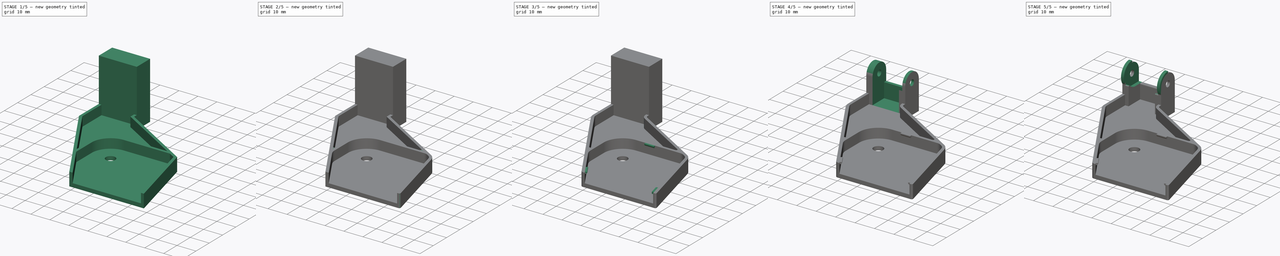
[diagram: build sequence overview — one tinted view per stage of 5, left to right]
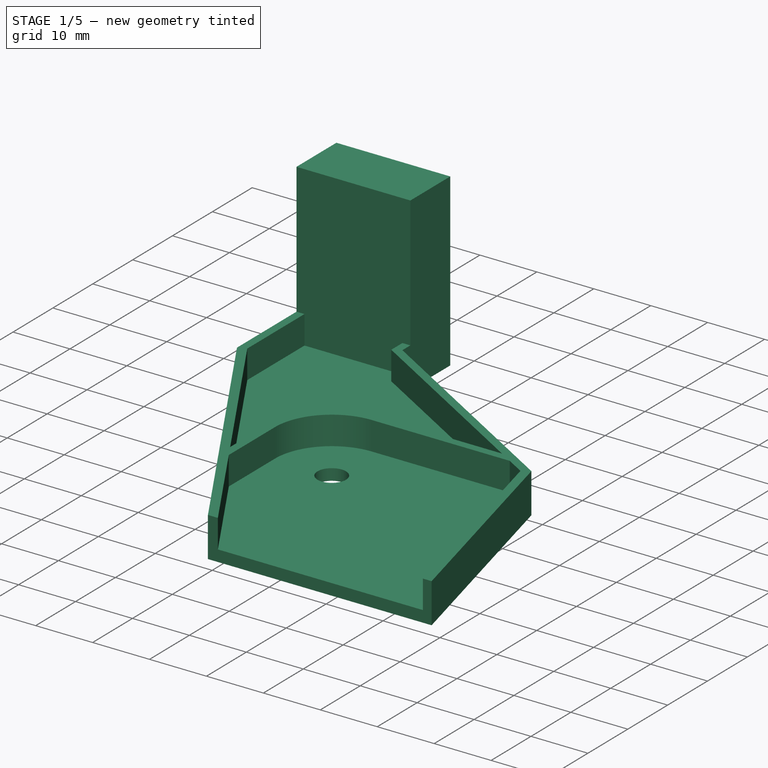
[diagram: stage 1 of 5 — iso view after this stage's code; geometry added in this stage tinted green]
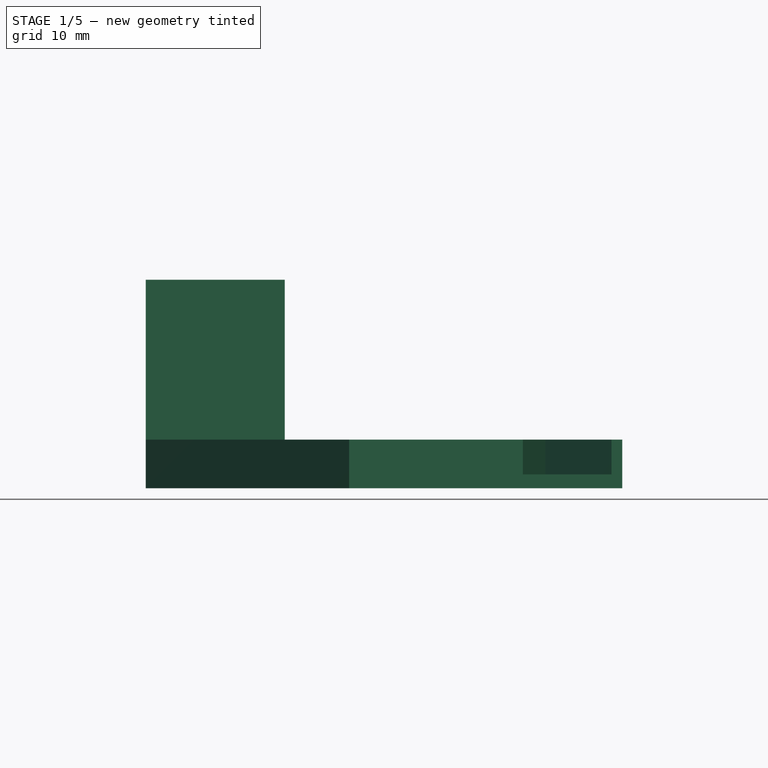
[diagram: stage 1 of 5 — front view after this stage's code; geometry added in this stage tinted green]
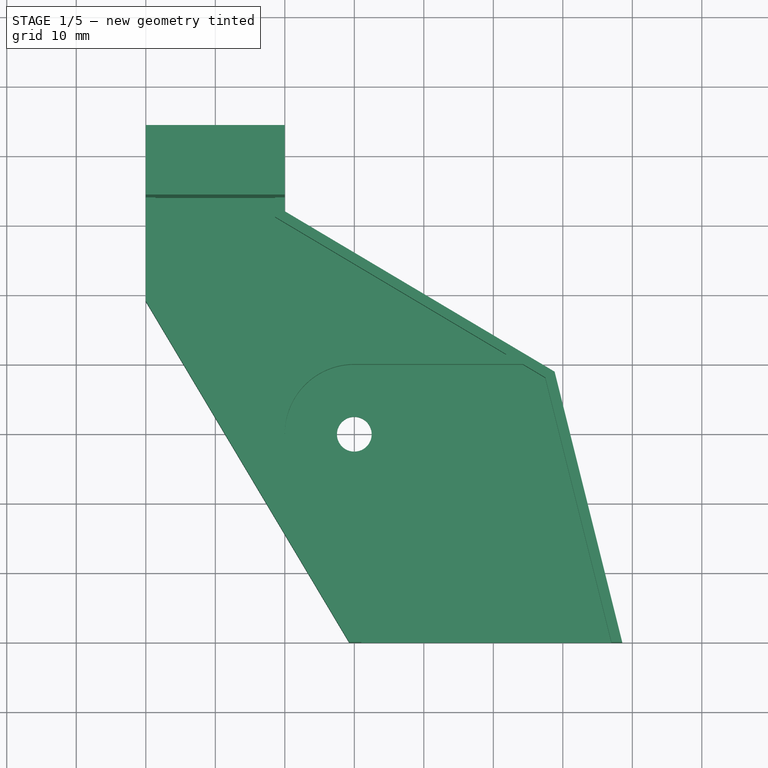
[diagram: stage 1 of 5 — top view after this stage's code; geometry added in this stage tinted green]
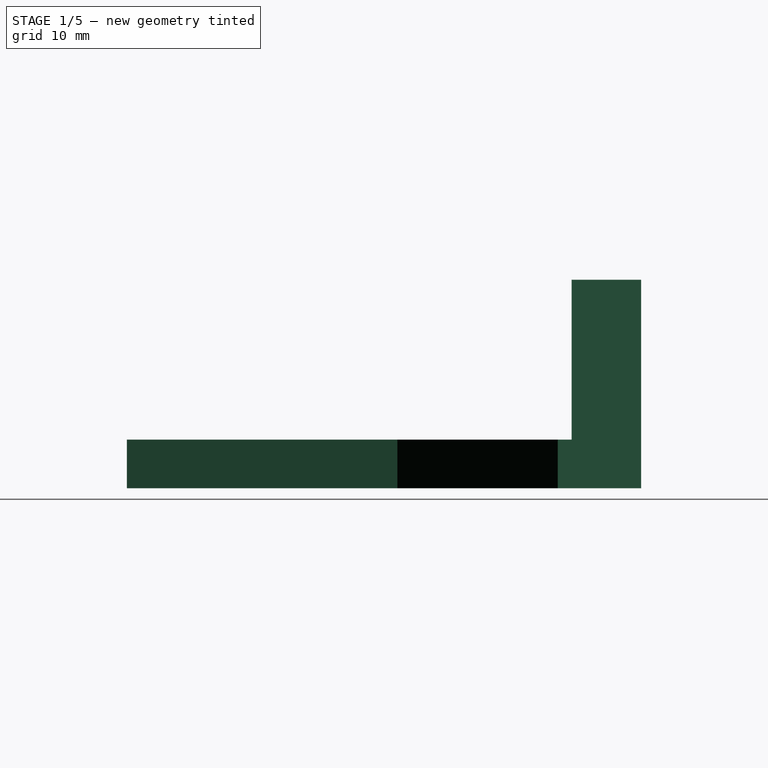
[diagram: stage 1 of 5 — right view after this stage's code; geometry added in this stage tinted green]
FCSTD DOCUMENT  (FreeCAD 0.17R13541 (Git))
Label: CableCareerTableHeader
License: All rights reserved
LicenseURL: http://en.wikipedia.org/wiki/All_rights_reserved
objects: Sketcher::SketchObject×17, PartDesign::Fillet×17, PartDesign::Pocket×11, PartDesign::Pad×5, PartDesign::Chamfer×3, PartDesign::Body×1
note: 70 computed .brp shape members not serialized (recipe doc carries the construction recipe); baked Part::Feature solids carry a one-line shape summary decoded from their .brp

FEATURE [Sketcher::SketchObject] Sketch
  MapMode = 5
  Support = -> [XY_Plane]
  sketch-geometry (7):
    g0: LineSegment StartX=-20 StartY=34 StartZ=0 EndX=0 EndY=34 EndZ=0
    g1: LineSegment StartX=0 StartY=34 StartZ=0 EndX=0 EndY=22 EndZ=0
    g2: LineSegment StartX=0 StartY=22 StartZ=0 EndX=37 EndY=0 EndZ=0
    g3: LineSegment StartX=37 StartY=0 StartZ=0 EndX=47 EndY=-40 EndZ=0
    g4: LineSegment StartX=47 StartY=-40 StartZ=0 EndX=11 EndY=-40 EndZ=0
    g5: LineSegment StartX=11 StartY=-40 StartZ=0 EndX=-20 EndY=12 EndZ=0
    g6: LineSegment StartX=-20 StartY=12 StartZ=0 EndX=-20 EndY=34 EndZ=0
  constraints (21):
    c: Coincident(g0,g1)
    c: Coincident(g1,g2)
    c: Coincident(g2,g3)
    c: Coincident(g3,g4)
    c: Coincident(g4,g5)
    c: Coincident(g5,g6)
    c: Coincident(g6,g0)
    c: Parallel(g0,g-1)
    c: Parallel(g-1,g4)
    c: Parallel(g6,g1)
    c: Parallel(g1,g-2)
    c: DistanceY(g6,g6) = 22
    c: DistanceX(g0,g0) = 20
    c: DistanceY(g1,g1) = 12
    c: DistanceX(g5,g4) = 31
    c: DistanceY(g4,g5) = 52
    c: DistanceX(g4,g3) = 36
    c: DistanceY(g2,g1) = 22
    c: DistanceX(g1,g2) = 37
    c: PointOnObject(g1,g-2)
    c: PointOnObject(g2,g-1)
FEATURE [Sketcher::SketchObject] Sketch001
  ExternalGeometry = -> [Sketch]
  MapMode = 5
  Support = -> [XY_Plane]
  sketch-geometry (7):
    g0: LineSegment StartX=-20 StartY=34 StartZ=0 EndX=0 EndY=34 EndZ=0
    g1: LineSegment StartX=0 StartY=34 StartZ=0 EndX=0 EndY=22 EndZ=0
    g2: LineSegment StartX=0 StartY=22 StartZ=0 EndX=38.8161 EndY=-1.07986 EndZ=0
    g3: LineSegment StartX=38.8161 StartY=-1.07986 StartZ=0 EndX=48.5462 EndY=-40 EndZ=0
    g4: LineSegment StartX=48.5462 StartY=-40 StartZ=0 EndX=9.25368 EndY=-40 EndZ=0
    g5: LineSegment StartX=9.25368 StartY=-40 StartZ=0 EndX=-20 EndY=9.07068 EndZ=0
    g6: LineSegment StartX=-20 StartY=9.07068 StartZ=0 EndX=-20 EndY=34 EndZ=0
  constraints (20):
    c: Coincident(g0,g1)
    c: Coincident(g1,g2)
    c: Coincident(g2,g3)
    c: Coincident(g3,g4)
    c: Coincident(g4,g5)
    c: Coincident(g5,g6)
    c: Coincident(g6,g0)
    c: Parallel(g-3,g0)
    c: Parallel(g-7,g1)
    c: Parallel(g-6,g2)
    c: Parallel(g-8,g3)
    c: Parallel(g4,g-9)
    c: Parallel(g-5,g5)
    c: Parallel(g-4,g6)
    c: Coincident(g-4,g0)
    c: Coincident(g-7,g0)
    c: Coincident(g-7,g1)
    c: PointOnObject(g-9,g4)
    c: Distance(g5,g-5) = 1.5
    c: Distance(g2,g-8) = 1.5
FEATURE [PartDesign::Pad] Pad
  Length = 30
  Length2 = 100
  Profile = -> Sketch001
  Type = 0
FEATURE [Sketcher::SketchObject] Sketch002
  ExternalGeometry = -> [Pad]
  MapMode = 5
  Placement = pos=(0,0,30) rot=(0,0,1;0rad)
  Support = -> [Pad]
  sketch-geometry (4):
    g0: LineSegment StartX=48.5462 StartY=-40 StartZ=0 EndX=-20 EndY=-40 EndZ=0
    g1: LineSegment StartX=-20 StartY=-40 StartZ=0 EndX=-20 EndY=24 EndZ=0
    g2: LineSegment StartX=-20 StartY=24 StartZ=0 EndX=48.5462 EndY=24 EndZ=0
    g3: LineSegment StartX=48.5462 StartY=24 StartZ=0 EndX=48.5462 EndY=-40 EndZ=0
  constraints (11):
    c: Coincident(g0,g1)
    c: Coincident(g1,g2)
    c: Coincident(g2,g3)
    c: Coincident(g3,g0)
    c: Horizontal(g0)
    c: Horizontal(g2)
    c: Vertical(g1)
    c: Vertical(g3)
    c: Coincident(g0,g-5)
    c: PointOnObject(g-3,g1)
    c: DistanceY(g-4,g1) = 2
FEATURE [PartDesign::Pocket] Pocket
  BaseFeature = -> Pad
  Length = 23
  Length2 = 100
  Profile = -> Sketch002
  Type = 0
FEATURE [Sketcher::SketchObject] Sketch003
  AttachmentOffset = pos=(0,0,7) rot=(0,0,1;0rad)
  ExternalGeometry = -> [Sketch]
  MapMode = 5
  Placement = pos=(0,0,7) rot=(0,0,1;0rad)
  Support = -> [XY_Plane]
  sketch-geometry (7):
    g0: LineSegment StartX=-18.6 StartY=24 StartZ=0 EndX=-1.4 EndY=24 EndZ=0
    g1: LineSegment StartX=-1.4 StartY=24 StartZ=0 EndX=-1.4 EndY=21.2036 EndZ=0
    g2: LineSegment StartX=-1.4 StartY=21.2036 StartZ=0 EndX=37.4783 EndY=-1.91318 EndZ=0
    g3: LineSegment StartX=37.4783 StartY=-1.91318 StartZ=0 EndX=47 EndY=-40 EndZ=0
    g4: LineSegment StartX=47 StartY=-40 StartZ=0 EndX=11 EndY=-40 EndZ=0
    g5: LineSegment StartX=11 StartY=-40 StartZ=0 EndX=-18.6 EndY=9.65161 EndZ=0
    g6: LineSegment StartX=-18.6 StartY=9.65161 StartZ=0 EndX=-18.6 EndY=24 EndZ=0
  constraints (20):
    c: Coincident(g0,g1)
    c: Coincident(g1,g2)
    c: Coincident(g2,g3)
    c: Coincident(g3,g4)
    c: Coincident(g4,g5)
    c: Coincident(g5,g6)
    c: Coincident(g6,g0)
    c: Parallel(g2,g-6)
    c: Parallel(g1,g-5)
    c: Parallel(g0,g-3)
    c: Parallel(g6,g-4)
    c: Parallel(g5,g-7)
    c: Parallel(g4,g-8)
    c: Parallel(g3,g-9)
    c: Coincident(g-9,g3)
    c: Coincident(g4,g-8)
    c: Distance(g-9,g2) = 1.4
    c: Distance(g-7,g6) = 1.4
    c: Distance(g-6,g1) = 1.4
    c: DistanceY(g-6,g0) = 2
FEATURE [PartDesign::Pocket] Pocket001
  BaseFeature = -> Pocket
  Length = 5
  Length2 = 100
  Profile = -> Sketch003
  Type = 0
FEATURE [Sketcher::SketchObject] Sketch004
  AttachmentOffset = pos=(0,0,2) rot=(0,0,1;0rad)
  ExternalGeometry = -> [Sketch]
  MapMode = 5
  Placement = pos=(0,0,2) rot=(0,0,1;0rad)
  Support = -> [XY_Plane]
  sketch-geometry (6):
    g0: LineSegment StartX=-1.4 StartY=1.4 StartZ=0 EndX=31.9061 EndY=1.4 EndZ=0
    g1: LineSegment StartX=31.9061 StartY=1.4 StartZ=0 EndX=34.2607 EndY=0 EndZ=0
    g2: LineSegment StartX=34.2607 StartY=0 StartZ=0 EndX=0 EndY=0 EndZ=0
    g3: LineSegment StartX=-1.4 StartY=1.4 StartZ=0 EndX=-1.4 EndY=-19.2 EndZ=0
    g4: LineSegment StartX=-1.4 StartY=-19.2 StartZ=0 EndX=0 EndY=-21.5484 EndZ=0
    g5: LineSegment StartX=0 StartY=-21.5484 StartZ=0 EndX=0 EndY=0 EndZ=0
  constraints (17):
    c: Coincident(g5,g4)
    c: Coincident(g4,g3)
    c: Coincident(g3,g0)
    c: Coincident(g5,g2)
    c: Coincident(g1,g2)
    c: Coincident(g1,g0)
    c: Horizontal(g0)
    c: Horizontal(g2)
    c: Vertical(g5)
    c: Vertical(g3)
    c: Coincident(g2,g-1)
    c: PointOnObject(g4,g-3)
    c: PointOnObject(g3,g-3)
    c: DistanceX(g0,g-1) = 1.4
    c: DistanceY(g-1,g0) = 1.4
    c: Distance(g1,g-5) = 1.4
    c: Distance(g0,g-5) = 1.4
FEATURE [PartDesign::Pad] Pad001
  BaseFeature = -> Pocket001
  Length = 5
  Length2 = 100
  Profile = -> Sketch004
  Type = 0
FEATURE [Sketcher::SketchObject] Sketch014
  MapMode = 5
  Placement = pos=(0,0,2) rot=(0,0,1;0rad)
  Support = -> [Pad001]
  sketch-geometry (1):
    g0: Circle CenterX=10 CenterY=-10 CenterZ=0 NormalX=0 NormalY=0 NormalZ=1 AngleXU=0 Radius=2.5
  constraints (3):
    c: Radius(g0) = 2.5
    c: DistanceX(g-1,g0) = 10
    c: DistanceY(g0,g-1) = 10
FEATURE [PartDesign::Pocket] Pocket011
  BaseFeature = -> Pad001
  Length = 2
  Length2 = 100
  Profile = -> Sketch014
  Type = 0
FEATURE [PartDesign::Fillet] Fillet
  Base = -> Pocket011 [Edge71]
  BaseFeature = -> Pocket011
  Radius = 10
FEATURE [PartDesign::Fillet] Fillet001
  Base = -> Fillet [Edge24]
  BaseFeature = -> Fillet
  Radius = 12
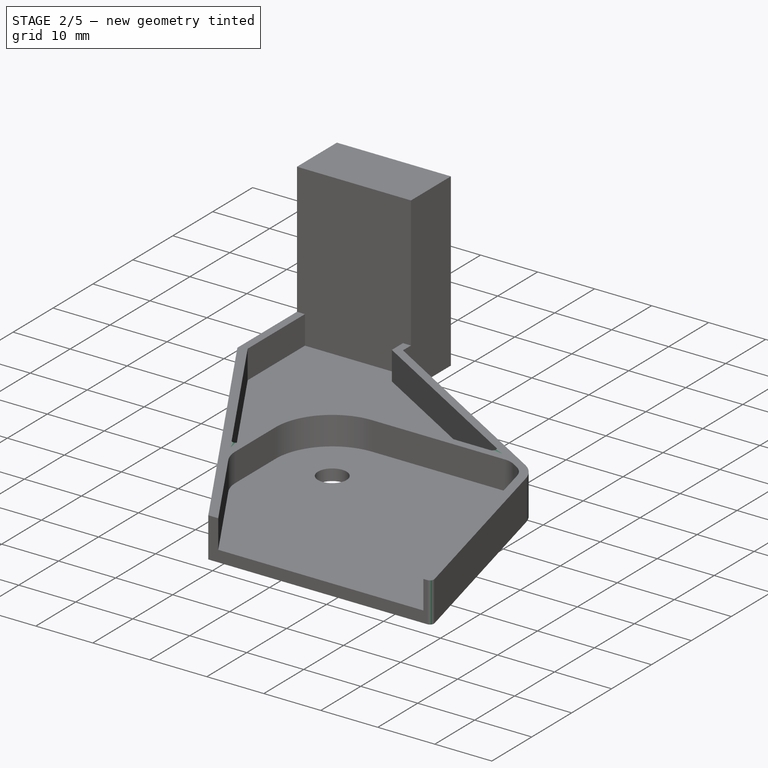
[diagram: stage 2 of 5 — iso view after this stage's code; geometry added in this stage tinted green]
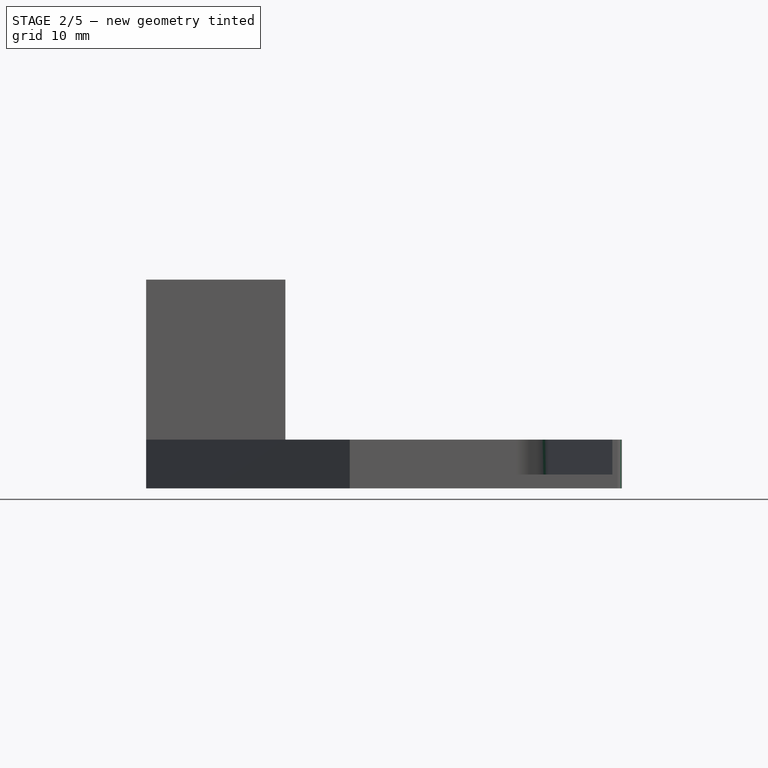
[diagram: stage 2 of 5 — front view after this stage's code; geometry added in this stage tinted green]
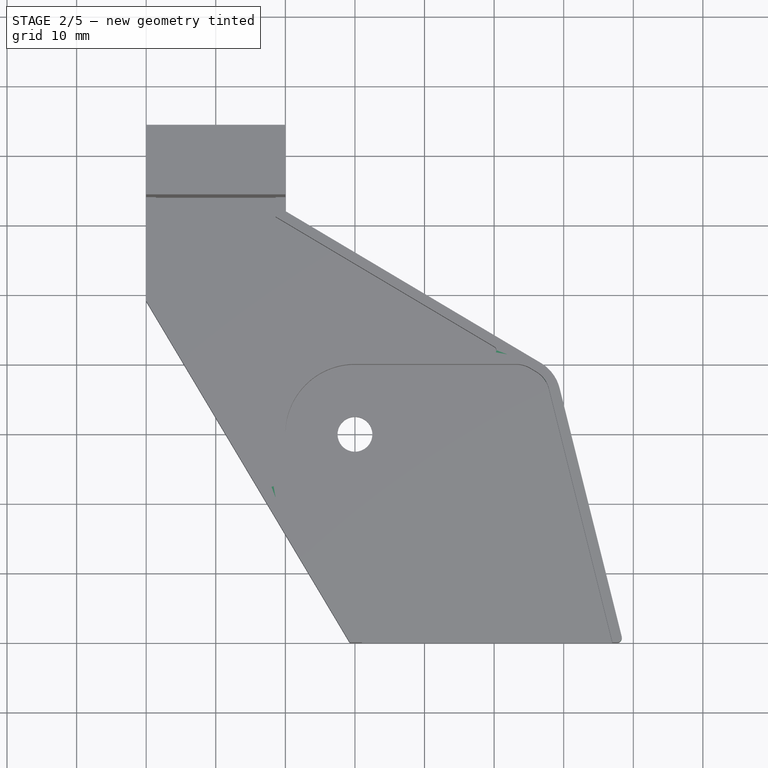
[diagram: stage 2 of 5 — top view after this stage's code; geometry added in this stage tinted green]
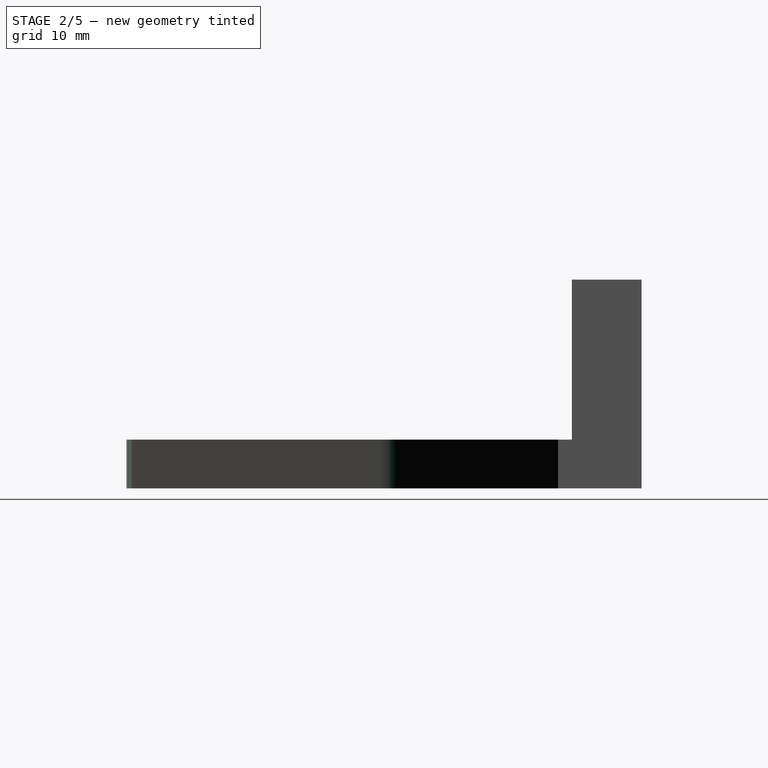
[diagram: stage 2 of 5 — right view after this stage's code; geometry added in this stage tinted green]
FEATURE [PartDesign::Fillet] Fillet002
  Base = -> Fillet001 [Edge38]
  BaseFeature = -> Fillet001
  Radius = 6
FEATURE [PartDesign::Fillet] Fillet003
  Base = -> Fillet002 [Edge26]
  BaseFeature = -> Fillet002
  Radius = 4
FEATURE [PartDesign::Fillet] Fillet004
  Base = -> Fillet003 [Edge52]
  BaseFeature = -> Fillet003
  Radius = 4
FEATURE [PartDesign::Fillet] Fillet005
  Base = -> Fillet004 [Edge40]
  BaseFeature = -> Fillet004
  Radius = 6
FEATURE [PartDesign::Fillet] Fillet006
  Base = -> Fillet005 [Edge54]
  BaseFeature = -> Fillet005
  Radius = 0.6
FEATURE [PartDesign::Fillet] Fillet007
  Base = -> Fillet006 [Edge68]
  BaseFeature = -> Fillet006
  Radius = 0.6
FEATURE [PartDesign::Fillet] Fillet008
  Base = -> Fillet007 [Edge79]
  BaseFeature = -> Fillet007
  Radius = 0.7
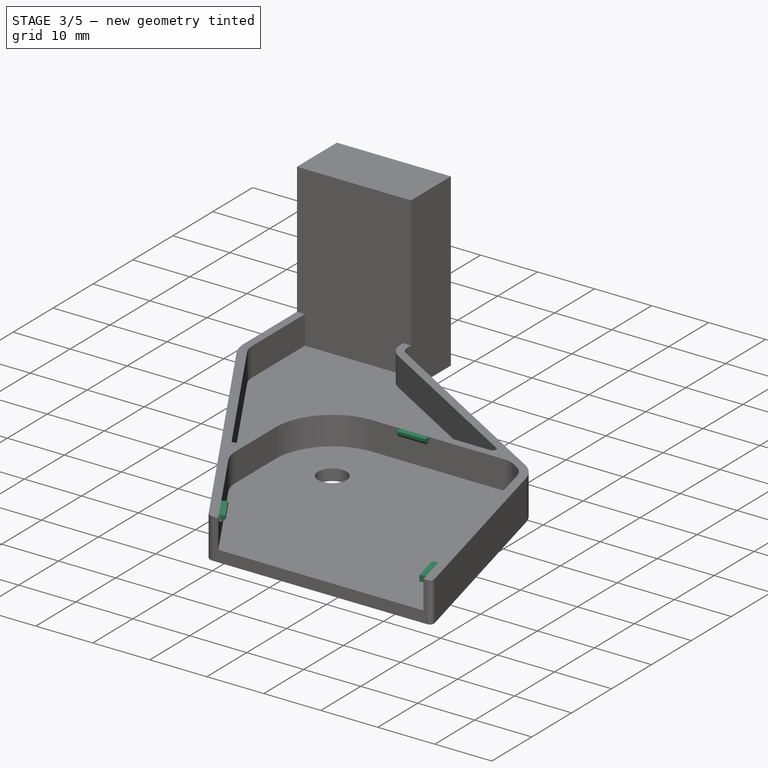
[diagram: stage 3 of 5 — iso view after this stage's code; geometry added in this stage tinted green]
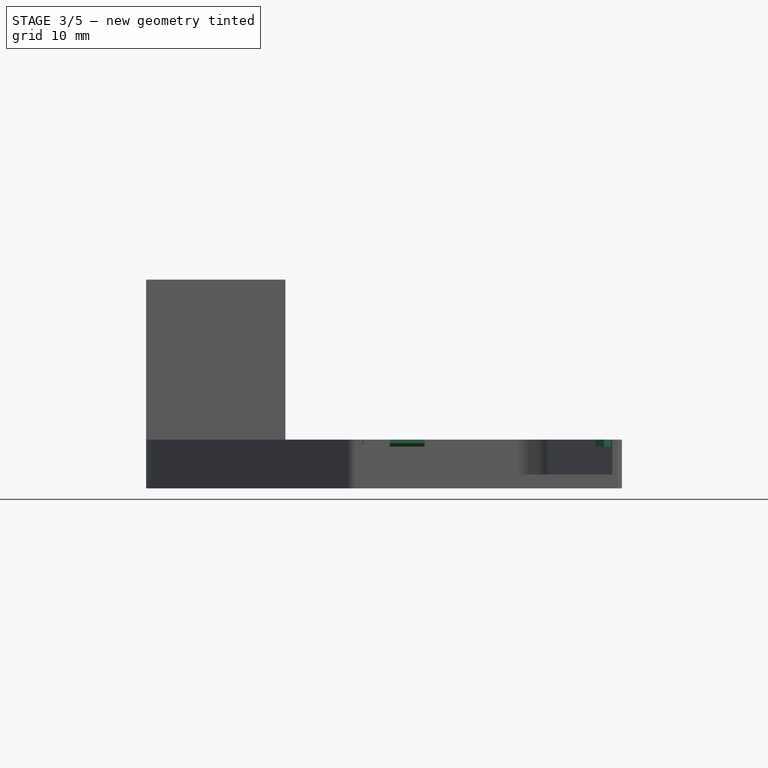
[diagram: stage 3 of 5 — front view after this stage's code; geometry added in this stage tinted green]
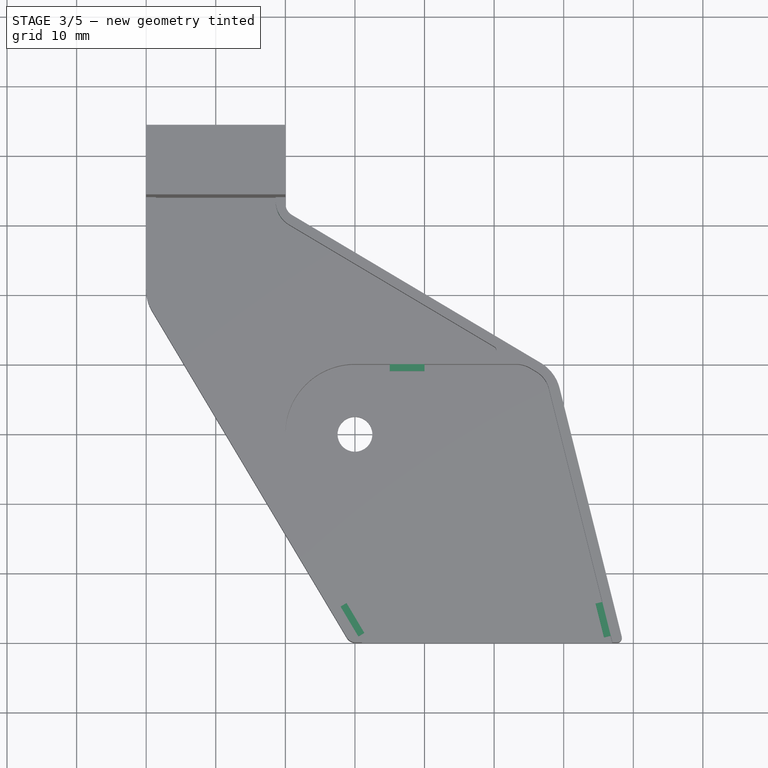
[diagram: stage 3 of 5 — top view after this stage's code; geometry added in this stage tinted green]
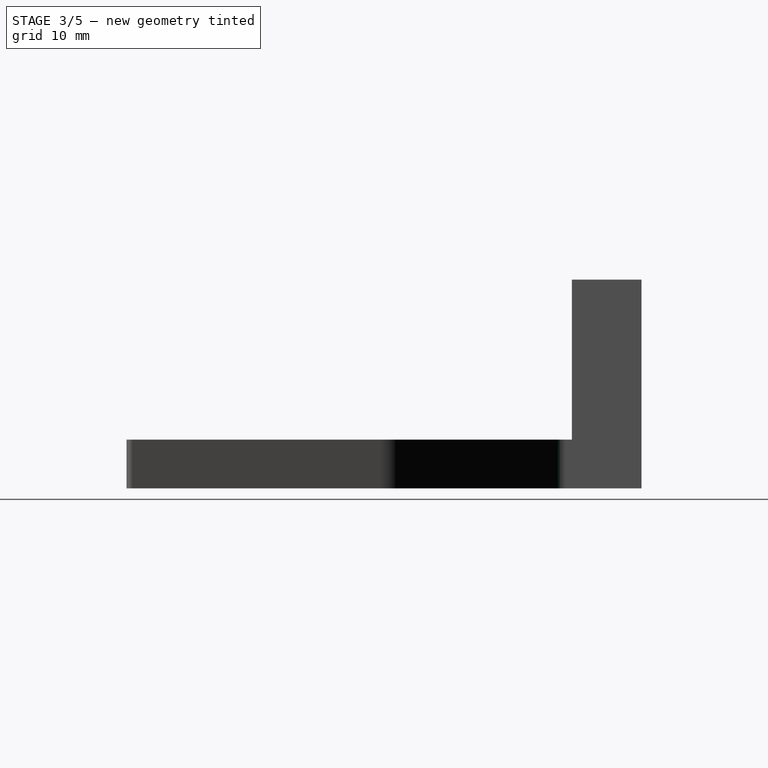
[diagram: stage 3 of 5 — right view after this stage's code; geometry added in this stage tinted green]
FEATURE [PartDesign::Fillet] Fillet009
  Base = -> Fillet008 [Edge24]
  BaseFeature = -> Fillet008
  Radius = 1.5
FEATURE [PartDesign::Fillet] Fillet010
  Base = -> Fillet009 [Edge71]
  BaseFeature = -> Fillet009
  Radius = 4
FEATURE [PartDesign::Fillet] Fillet011
  Base = -> Fillet010 [Edge28]
  BaseFeature = -> Fillet010
  Radius = 6
FEATURE [PartDesign::Fillet] Fillet012
  Base = -> Fillet011 [Edge67]
  BaseFeature = -> Fillet011
  Radius = 2
FEATURE [PartDesign::Fillet] Fillet013
  Base = -> Fillet012 [Edge80]
  BaseFeature = -> Fillet012
  Radius = 4
FEATURE [Sketcher::SketchObject] Sketch015
  ExternalGeometry = -> [Fillet013]
  MapMode = 5
  Placement = pos=(0,0,7) rot=(0,0,1;0rad)
  Support = -> [Fillet013]
  sketch-geometry (12):
    g0: LineSegment StartX=15 StartY=0 StartZ=0 EndX=20 EndY=0 EndZ=0
    g1: LineSegment StartX=20 StartY=0 StartZ=0 EndX=20 EndY=-1 EndZ=0
    g2: LineSegment StartX=20 StartY=-1 StartZ=0 EndX=15 EndY=-1 EndZ=0
    g3: LineSegment StartX=15 StartY=-1 StartZ=0 EndX=15 EndY=0 EndZ=0
    g4: LineSegment StartX=7.92761 StartY=-34.8463 StartZ=0 EndX=10.4879 EndY=-39.1411 EndZ=0
    g5: LineSegment StartX=10.4879 StartY=-39.1411 StartZ=0 EndX=11.3469 EndY=-38.629 EndZ=0
    g6: LineSegment StartX=11.3469 StartY=-38.629 StartZ=0 EndX=8.78656 EndY=-34.3343 EndZ=0
    g7: LineSegment StartX=8.78656 StartY=-34.3343 StartZ=0 EndX=7.92761 EndY=-34.8463 EndZ=0
    g8: LineSegment StartX=44.5746 StartY=-34.4217 StartZ=0 EndX=45.5448 EndY=-34.1791 EndZ=0
    g9: LineSegment StartX=45.5448 StartY=-34.1791 StartZ=0 EndX=46.7575 EndY=-39.0299 EndZ=0
    g10: LineSegment StartX=46.7575 StartY=-39.0299 StartZ=0 EndX=45.7873 EndY=-39.2724 EndZ=0
    g11: LineSegment StartX=45.7873 StartY=-39.2724 StartZ=0 EndX=44.5746 EndY=-34.4217 EndZ=0
  constraints (36):
    c: Coincident(g0,g1)
    c: Coincident(g1,g2)
    c: Coincident(g2,g3)
    c: Coincident(g3,g0)
    c: Horizontal(g0)
    c: Horizontal(g2)
    c: Vertical(g1)
    c: Vertical(g3)
    c: DistanceX(g2,g2) = 5
    c: DistanceY(g3,g3) = 1
    c: PointOnObject(g0,g-3)
    c: DistanceX(g-3,g0) = 5
    c: Coincident(g4,g5)
    c: Coincident(g5,g6)
    c: Coincident(g6,g7)
    c: Coincident(g7,g4)
    c: Parallel(g6,g4)
    c: Parallel(g4,g-4)
    c: Parallel(g5,g7)
    c: Perpendicular(g5,g6)
    c: PointOnObject(g4,g-4)
    c: Distance(g4,g-4) = 1
    c: Distance(g7) = 1
    c: Distance(g4) = 5
    c: Coincident(g8,g9)
    c: Coincident(g9,g10)
    c: Coincident(g10,g11)
    c: Coincident(g11,g8)
    c: Parallel(g8,g10)
    c: Parallel(g11,g9)
    c: Parallel(g9,g-5)
    c: Perpendicular(g11,g10)
    c: PointOnObject(g9,g-5)
    c: Distance(g9,g-5) = 1
    c: Distance(g10) = 1
    c: Distance(g11) = 5
FEATURE [PartDesign::Pad] Pad002
  BaseFeature = -> Fillet013
  Length = 1
  Length2 = 100
  Profile = -> Sketch015
  Reversed = true
  Type = 0
FEATURE [PartDesign::Chamfer] Chamfer
  Base = -> Pad002 [Edge151]
  BaseFeature = -> Pad002
  Size = 0.5
FEATURE [PartDesign::Chamfer] Chamfer001
  Base = -> Chamfer [Edge158]
  BaseFeature = -> Chamfer
  Size = 0.5
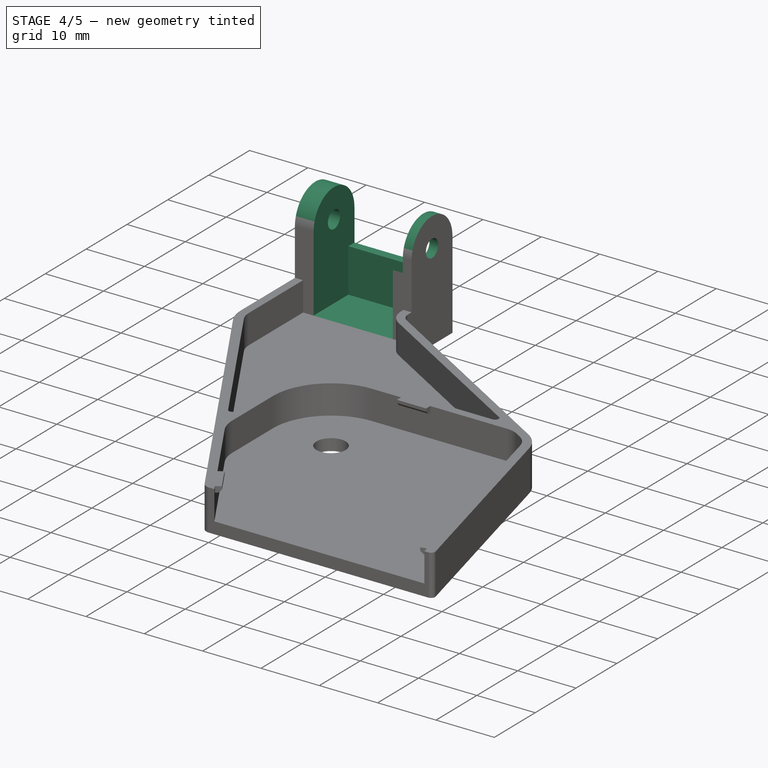
[diagram: stage 4 of 5 — iso view after this stage's code; geometry added in this stage tinted green]
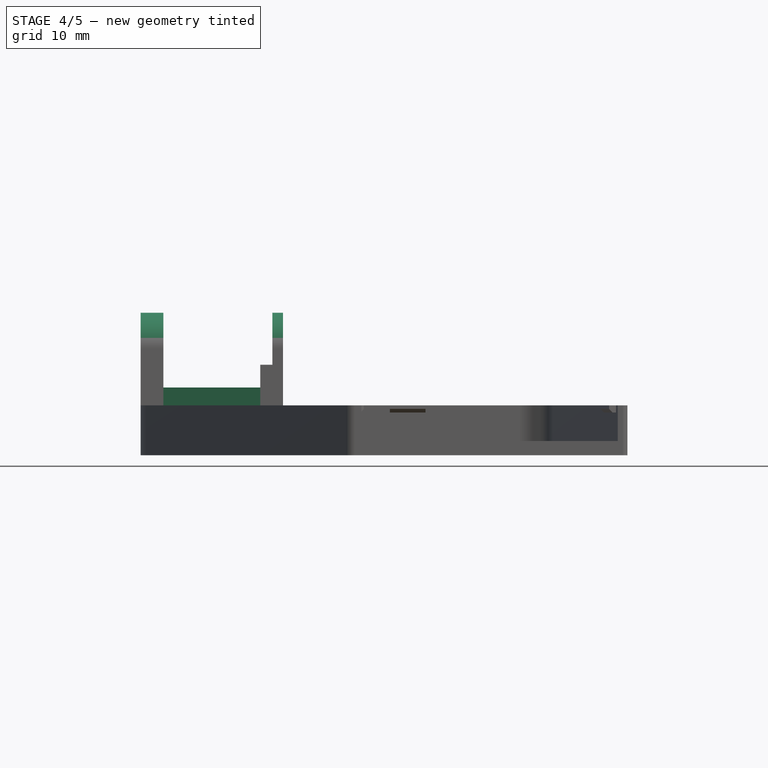
[diagram: stage 4 of 5 — front view after this stage's code; geometry added in this stage tinted green]
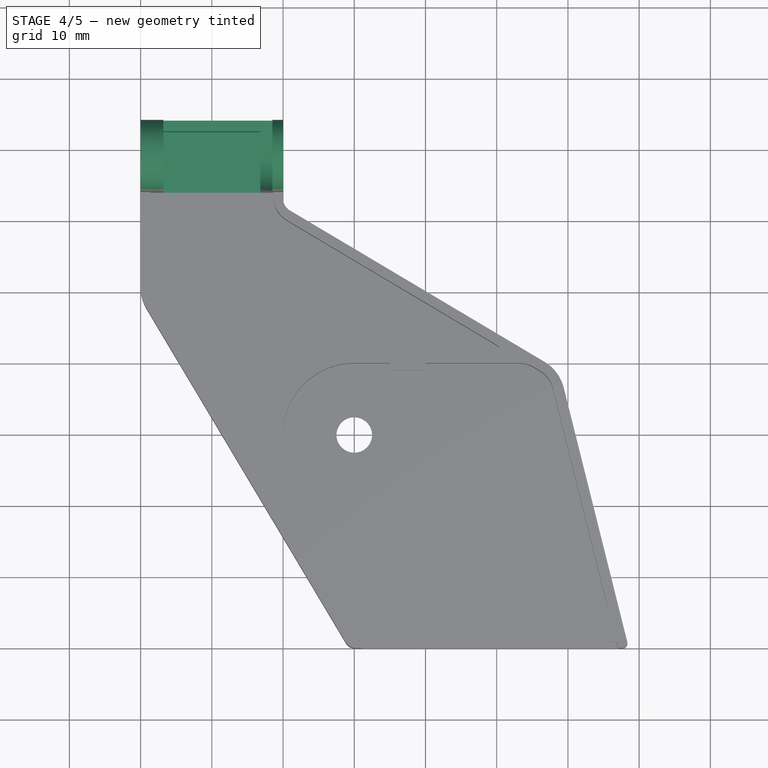
[diagram: stage 4 of 5 — top view after this stage's code; geometry added in this stage tinted green]
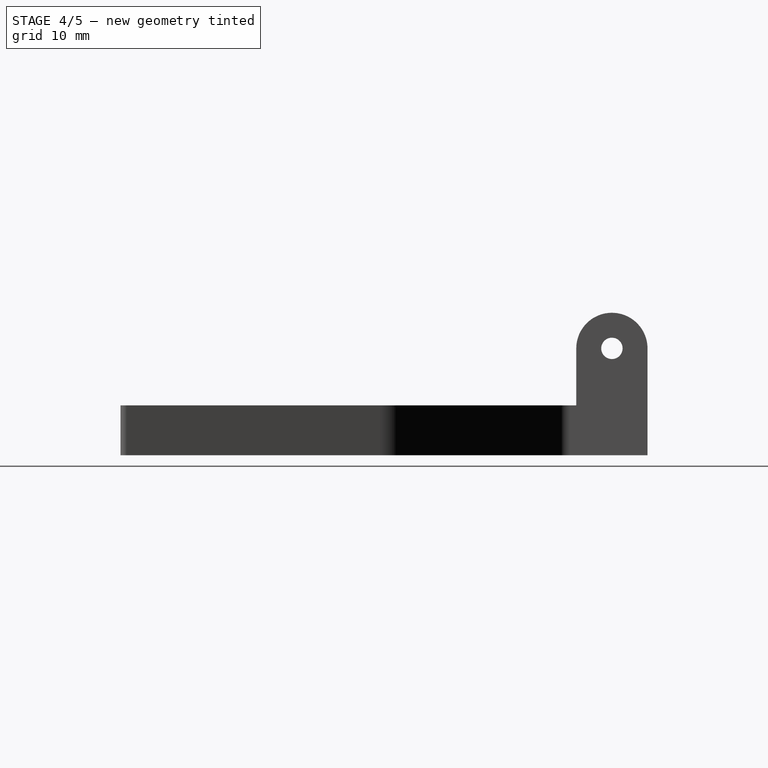
[diagram: stage 4 of 5 — right view after this stage's code; geometry added in this stage tinted green]
FEATURE [PartDesign::Chamfer] Chamfer002
  Base = -> Chamfer001 [Edge146]
  BaseFeature = -> Chamfer001
  Size = 0.5
FEATURE [Sketcher::SketchObject] Sketch016
  ExternalGeometry = -> [Chamfer002]
  MapMode = 5
  Placement = pos=(0,0,30) rot=(0,0,1;0rad)
  Support = -> [Chamfer002]
  sketch-geometry (4):
    g0: LineSegment StartX=-16.8 StartY=32.5 StartZ=0 EndX=-3.2 EndY=32.5 EndZ=0
    g1: LineSegment StartX=-3.2 StartY=32.5 StartZ=0 EndX=-3.2 EndY=24 EndZ=0
    g2: LineSegment StartX=-3.2 StartY=24 StartZ=0 EndX=-16.8 EndY=24 EndZ=0
    g3: LineSegment StartX=-16.8 StartY=24 StartZ=0 EndX=-16.8 EndY=32.5 EndZ=0
  constraints (12):
    c: Coincident(g0,g1)
    c: Coincident(g1,g2)
    c: Coincident(g2,g3)
    c: Coincident(g3,g0)
    c: Horizontal(g0)
    c: Horizontal(g2)
    c: Vertical(g1)
    c: Vertical(g3)
    c: DistanceY(g0,g-3) = 1.5
    c: PointOnObject(g2,g-4)
    c: DistanceX(g-4,g2) = 3.2
    c: DistanceX(g1,g-4) = 3.2
FEATURE [PartDesign::Pocket] Pocket012
  BaseFeature = -> Chamfer002
  Length = 28
  Length2 = 100
  Profile = -> Sketch016
  Type = 0
FEATURE [Sketcher::SketchObject] Sketch017
  ExternalGeometry = -> [Pocket012]
  MapMode = 5
  Placement = pos=(0,0,30) rot=(0,0,1;0rad)
  Support = -> [Pocket012]
  sketch-geometry (4):
    g0: LineSegment StartX=-16.8 StartY=34 StartZ=0 EndX=-3.2 EndY=34 EndZ=0
    g1: LineSegment StartX=-3.2 StartY=34 StartZ=0 EndX=-3.2 EndY=32.5 EndZ=0
    g2: LineSegment StartX=-3.2 StartY=32.5 StartZ=0 EndX=-16.8 EndY=32.5 EndZ=0
    g3: LineSegment StartX=-16.8 StartY=32.5 StartZ=0 EndX=-16.8 EndY=34 EndZ=0
  constraints (11):
    c: Coincident(g0,g1)
    c: Coincident(g1,g2)
    c: Coincident(g2,g3)
    c: Coincident(g3,g0)
    c: Horizontal(g0)
    c: Horizontal(g2)
    c: Vertical(g1)
    c: Vertical(g3)
    c: Coincident(g1,g-3)
    c: Coincident(g2,g-3)
    c: PointOnObject(g0,g-4)
FEATURE [PartDesign::Pocket] Pocket013
  BaseFeature = -> Pocket012
  Length = 20.5
  Length2 = 100
  Profile = -> Sketch017
  Type = 0
FEATURE [Sketcher::SketchObject] Sketch018
  ExternalGeometry = -> [Pocket013]
  MapMode = 5
  Placement = pos=(-20,0,0) rot=(0.57735,-0.57735,-0.57735;2.0944rad)
  Support = -> [Pocket013]
  sketch-geometry (4):
    g0: ArcOfCircle CenterX=-29 CenterY=15 CenterZ=0 NormalX=0 NormalY=0 NormalZ=1 AngleXU=0 Radius=5 StartAngle=1.64169e-06 EndAngle=3.14159
    g1: LineSegment StartX=-34 StartY=15 StartZ=0 EndX=-34 EndY=30 EndZ=0
    g2: LineSegment StartX=-34 StartY=30 StartZ=0 EndX=-24 EndY=30 EndZ=0
    g3: LineSegment StartX=-24 StartY=30 StartZ=0 EndX=-24 EndY=15 EndZ=0
  constraints (13):
    c: DistanceX(g-4,g0) = 5
    c: DistanceY(g0,g-4) = 15
    c: Radius(g0) = 5
    c: PointOnObject(g0,g-4)
    c: PointOnObject(g0,g-5)
    c: Coincident(g1,g2)
    c: Coincident(g2,g3)
    c: Coincident(g1,g0)
    c: Coincident(g3,g0)
    c: PointOnObject(g-5,g3)
    c: PointOnObject(g-4,g1)
    c: Horizontal(g2)
    c: Coincident(g2,g-5)
FEATURE [PartDesign::Pocket] Pocket014
  BaseFeature = -> Pocket013
  Length = 20
  Length2 = 100
  Profile = -> Sketch018
  Type = 0
FEATURE [Sketcher::SketchObject] Sketch023
  ExternalGeometry = -> [Pocket014]
  MapMode = 5
  Placement = pos=(-20,0,0) rot=(0.57735,-0.57735,-0.57735;2.0944rad)
  Support = -> [Pocket014]
  sketch-geometry (1):
    g0: Circle CenterX=-29 CenterY=15 CenterZ=0 NormalX=0 NormalY=0 NormalZ=1 AngleXU=0 Radius=1.5
  constraints (2):
    c: Coincident(g-3,g0)
    c: Radius(g0) = 1.5
FEATURE [PartDesign::Pocket] Pocket015
  BaseFeature = -> Pocket014
  Length = 20
  Length2 = 100
  Profile = -> Sketch023
  Type = 0
FEATURE [Sketcher::SketchObject] Sketch024
  ExternalGeometry = -> [Pocket015]
  MapMode = 5
  Placement = pos=(-3.2,0,0) rot=(0.57735,-0.57735,-0.57735;2.0944rad)
  Support = -> [Pocket015]
  sketch-geometry (1):
    g0: Circle CenterX=-29 CenterY=15 CenterZ=0 NormalX=0 NormalY=0 NormalZ=1 AngleXU=0 Radius=5.5
  constraints (2):
    c: Coincident(g-3,g0)
    c: Radius(g0) = 5.5
FEATURE [PartDesign::Pocket] Pocket016
  BaseFeature = -> Pocket015
  Length = 1.7
  Length2 = 100
  Profile = -> Sketch024
  Type = 0
FEATURE [Sketcher::SketchObject] Sketch025
  ExternalGeometry = -> [Pocket016]
  MapMode = 5
  Placement = pos=(-3.2,0,0) rot=(0.57735,-0.57735,-0.57735;2.0944rad)
  Support = -> [Pocket016]
  sketch-geometry (4):
    g0: LineSegment StartX=-34 StartY=15 StartZ=0 EndX=-29 EndY=15 EndZ=0
    g1: LineSegment StartX=-29 StartY=15 StartZ=0 EndX=-29 EndY=9.5 EndZ=0
    g2: LineSegment StartX=-29 StartY=9.5 StartZ=0 EndX=-34 EndY=9.5 EndZ=0
    g3: LineSegment StartX=-34 StartY=9.5 StartZ=0 EndX=-34 EndY=15 EndZ=0
  constraints (11):
    c: Coincident(g0,g1)
    c: Coincident(g1,g2)
    c: Coincident(g2,g3)
    c: Coincident(g3,g0)
    c: Horizontal(g0)
    c: Horizontal(g2)
    c: Vertical(g1)
    c: Vertical(g3)
    c: Coincident(g-3,g0)
    c: DistanceX(g0,g0) = 5
    c: DistanceY(g1,g1) = 5.5
FEATURE [PartDesign::Pocket] Pocket017
  BaseFeature = -> Pocket016
  Length = 1.7
  Length2 = 100
  Profile = -> Sketch025
  Type = 0
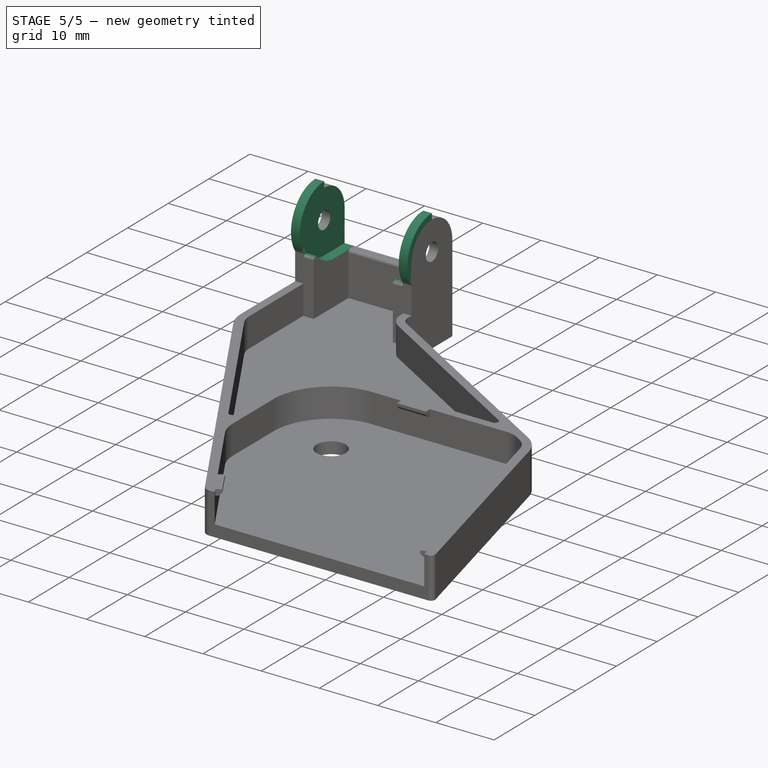
[diagram: stage 5 of 5 — iso view after this stage's code; geometry added in this stage tinted green]
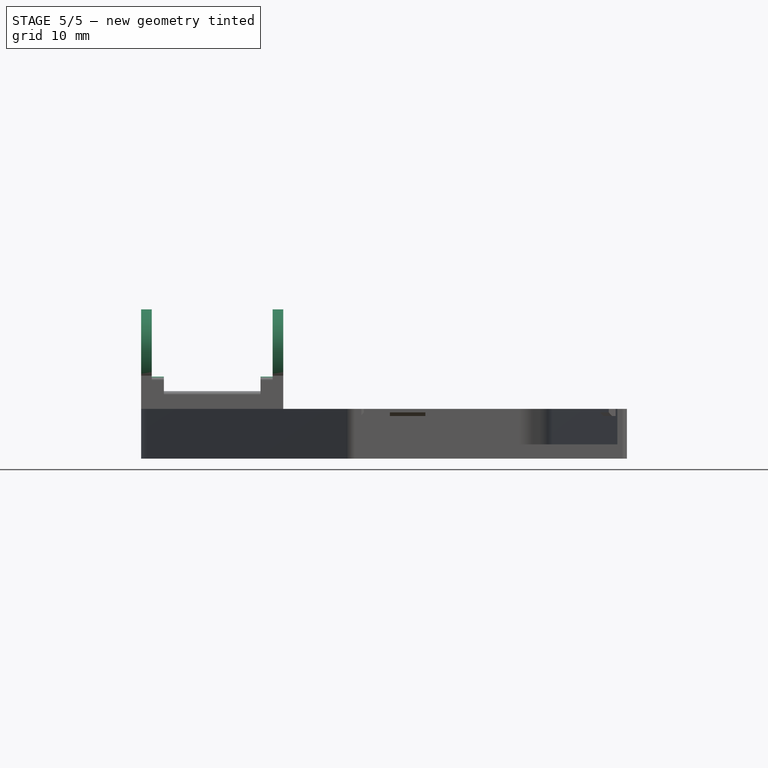
[diagram: stage 5 of 5 — front view after this stage's code; geometry added in this stage tinted green]
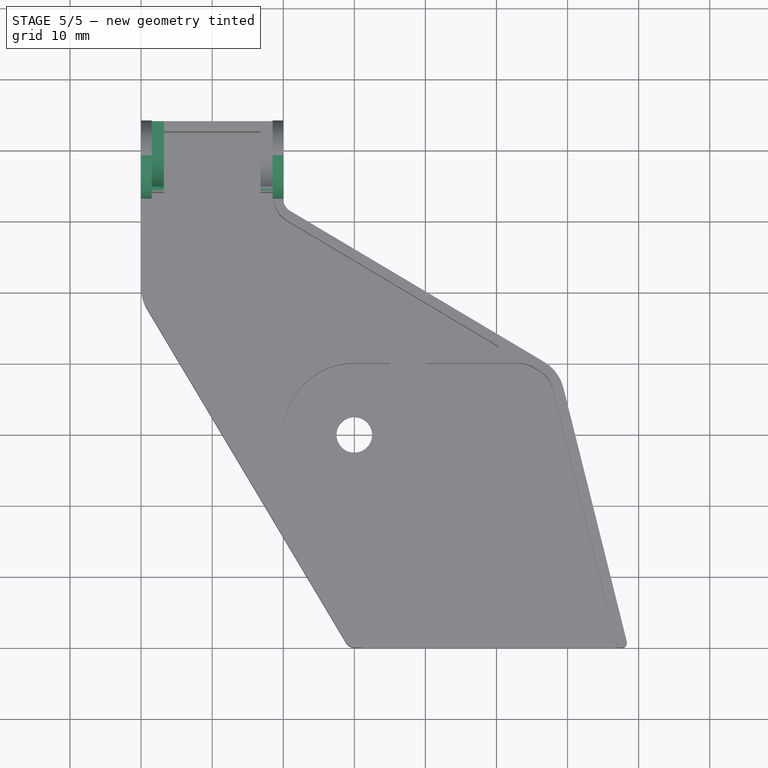
[diagram: stage 5 of 5 — top view after this stage's code; geometry added in this stage tinted green]
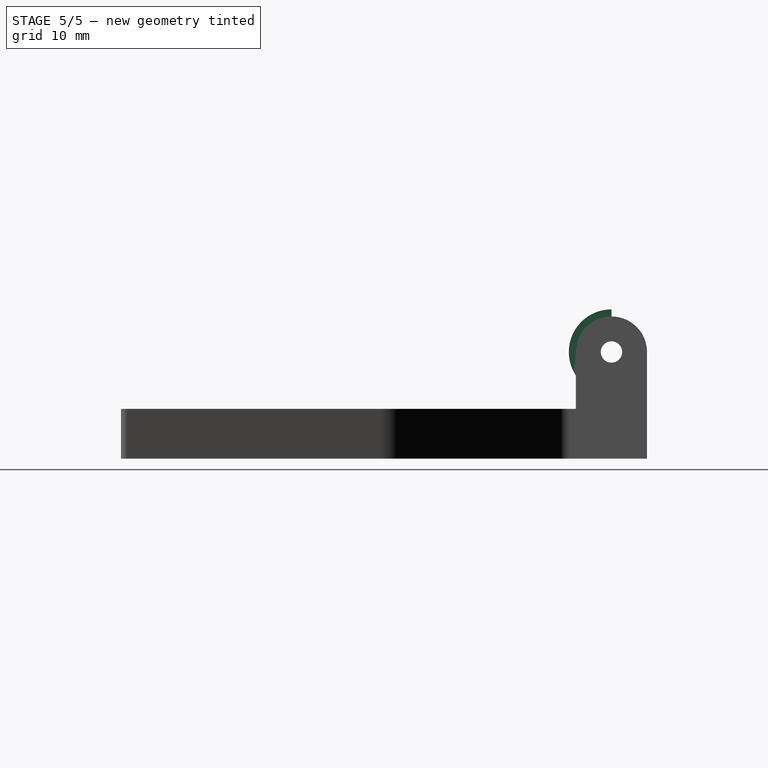
[diagram: stage 5 of 5 — right view after this stage's code; geometry added in this stage tinted green]
FEATURE [Sketcher::SketchObject] Sketch026
  ExternalGeometry = -> [Pocket017]
  MapMode = 5
  Placement = pos=(-16.8,0,0) rot=(0.57735,0.57735,0.57735;2.0944rad)
  Support = -> [Pocket017]
  sketch-geometry (1):
    g0: Circle CenterX=29 CenterY=15 CenterZ=0 NormalX=0 NormalY=0 NormalZ=1 AngleXU=0 Radius=5.5
  constraints (2):
    c: Coincident(g-3,g0)
    c: Radius(g0) = 5.5
FEATURE [PartDesign::Pocket] Pocket018
  BaseFeature = -> Pocket017
  Length = 1.7
  Length2 = 100
  Profile = -> Sketch026
  Type = 0
FEATURE [Sketcher::SketchObject] Sketch027
  ExternalGeometry = -> [Pocket018]
  MapMode = 5
  Placement = pos=(-16.8,0,0) rot=(0.57735,0.57735,0.57735;2.0944rad)
  Support = -> [Pocket018]
  sketch-geometry (4):
    g0: LineSegment StartX=29 StartY=15 StartZ=0 EndX=34 EndY=15 EndZ=0
    g1: LineSegment StartX=34 StartY=15 StartZ=0 EndX=34 EndY=9.5 EndZ=0
    g2: LineSegment StartX=34 StartY=9.5 StartZ=0 EndX=29 EndY=9.5 EndZ=0
    g3: LineSegment StartX=29 StartY=9.5 StartZ=0 EndX=29 EndY=15 EndZ=0
  constraints (11):
    c: Coincident(g0,g1)
    c: Coincident(g1,g2)
    c: Coincident(g2,g3)
    c: Coincident(g3,g0)
    c: Horizontal(g0)
    c: Horizontal(g2)
    c: Vertical(g1)
    c: Vertical(g3)
    c: Coincident(g0,g-3)
    c: DistanceX(g0,g0) = 5
    c: DistanceY(g3,g3) = 5.5
FEATURE [PartDesign::Pocket] Pocket019
  BaseFeature = -> Pocket018
  Length = 1.7
  Length2 = 100
  Profile = -> Sketch027
  Type = 0
FEATURE [Sketcher::SketchObject] Sketch028
  ExternalGeometry = -> [Pocket019]
  MapMode = 5
  Placement = pos=(0,0,0) rot=(0.57735,0.57735,0.57735;2.0944rad)
  Support = -> [Pocket019]
  sketch-geometry (4):
    g0: ArcOfCircle CenterX=29 CenterY=15 CenterZ=0 NormalX=0 NormalY=0 NormalZ=1 AngleXU=0 Radius=6 StartAngle=1.5708 EndAngle=3.98266
    g1: ArcOfCircle CenterX=29 CenterY=15 CenterZ=0 NormalX=0 NormalY=0 NormalZ=1 AngleXU=0 Radius=4 StartAngle=1.5708 EndAngle=3.14159
    g2: LineSegment StartX=29 StartY=21 StartZ=0 EndX=29 EndY=19 EndZ=0
    g3: LineSegment StartX=25 StartY=15 StartZ=0 EndX=25 EndY=10.5279 EndZ=0
  constraints (12):
    c: Coincident(g1,g0)
    c: Coincident(g0,g-4)
    c: Coincident(g2,g1)
    c: Coincident(g2,g0)
    c: Vertical(g2)
    c: DistanceY(g2,g2) = 2
    c: DistanceX(g1,g0) = 0
    c: DistanceX(g-5,g1) = 1
    c: DistanceY(g-5,g1) = 0
    c: Coincident(g3,g0)
    c: Coincident(g3,g1)
    c: Vertical(g3)
FEATURE [PartDesign::Pad] Pad003
  BaseFeature = -> Pocket019
  Length = 1.5
  Length2 = 100
  Profile = -> Sketch028
  Reversed = true
  Type = 0
FEATURE [Sketcher::SketchObject] Sketch029
  ExternalGeometry = -> [Pad003]
  MapMode = 5
  Placement = pos=(-20,0,0) rot=(0.57735,-0.57735,-0.57735;2.0944rad)
  Support = -> [Pad003]
  sketch-geometry (4):
    g0: ArcOfCircle CenterX=-29 CenterY=15 CenterZ=0 NormalX=0 NormalY=0 NormalZ=1 AngleXU=0 Radius=6 StartAngle=5.44212 EndAngle=7.85398
    g1: ArcOfCircle CenterX=-29 CenterY=15 CenterZ=0 NormalX=0 NormalY=0 NormalZ=1 AngleXU=0 Radius=4 StartAngle=2.05211e-06 EndAngle=1.5708
    g2: LineSegment StartX=-29 StartY=21 StartZ=0 EndX=-29 EndY=19 EndZ=0
    g3: LineSegment StartX=-25 StartY=15 StartZ=0 EndX=-25 EndY=10.5279 EndZ=0
  constraints (12):
    c: Coincident(g0,g-4)
    c: Coincident(g0,g1)
    c: Coincident(g3,g0)
    c: Coincident(g3,g1)
    c: Coincident(g1,g2)
    c: Coincident(g2,g0)
    c: Vertical(g2)
    c: Vertical(g3)
    c: DistanceX(g0,g1) = 0
    c: DistanceX(g1,g-5) = 1
    c: DistanceY(g1,g-5) = 0
    c: DistanceY(g1,g0) = 2
FEATURE [PartDesign::Pad] Pad004
  BaseFeature = -> Pad003
  Length = 1.5
  Length2 = 100
  Profile = -> Sketch029
  Reversed = true
  Type = 0
FEATURE [PartDesign::Fillet] Fillet014
  Base = -> Pad004 [Edge63]
  BaseFeature = -> Pad004
  Radius = 0.5
FEATURE [PartDesign::Fillet] Fillet015
  Base = -> Fillet014 [Edge232]
  BaseFeature = -> Fillet014
  Radius = 0.5
FEATURE [PartDesign::Fillet] Fillet016
  Base = -> Fillet015 [Edge22]
  BaseFeature = -> Fillet015
  Radius = 0.5
FEATURE [PartDesign::Body] Body
  Group = -> [Sketch,Sketch001,Pad,Sketch002,Pocket,Sketch003,Pocket001,Sketch004,Pad001,Pocket011,Sketch014,Fillet,Fillet001,Fillet002,Fillet003,Fillet004,Fillet005,Fillet006,Fillet007,Fillet008,Fillet009,Fillet010,Fillet011,Fillet012,Fillet013,Sketch015,Pad002,Chamfer,Chamfer001,Chamfer002,Sketch016,Pocket012,Sketch017,Pocket013,Sketch018,Pocket014,Sketch023,Pocket015,Sketch024,Pocket016,Sketch025,Pocket017,+11 more]
  Origin = -> Origin
  Tip = -> Fillet016
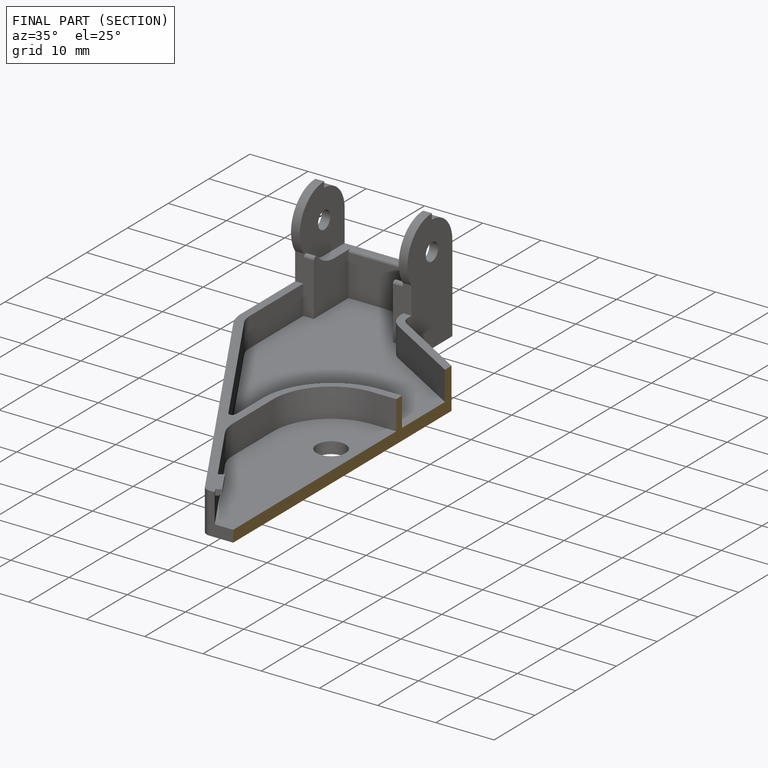
[diagram: finished part — half-section view (interior)]
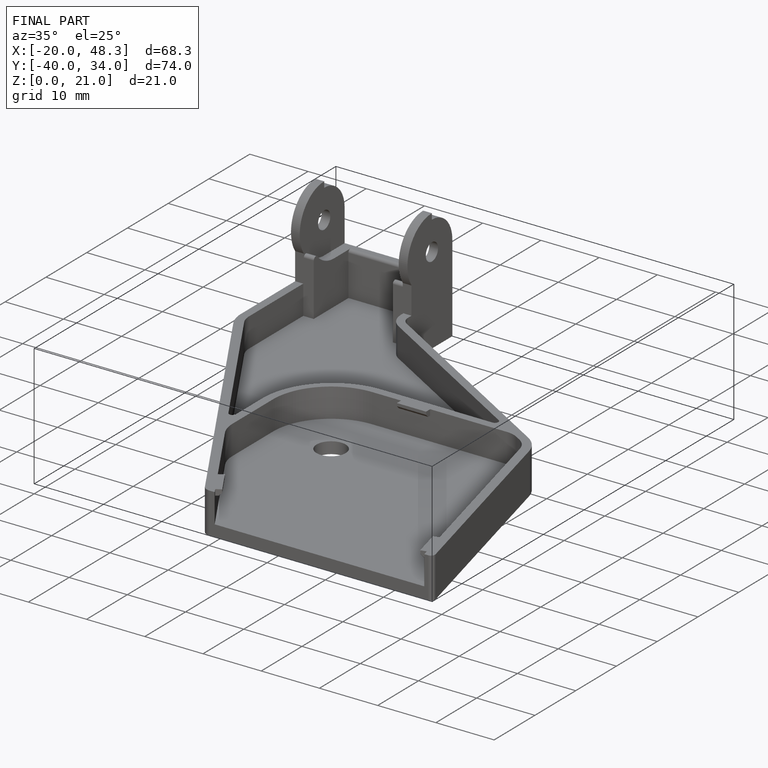
[diagram: finished part — iso view with bounding-box wireframe]
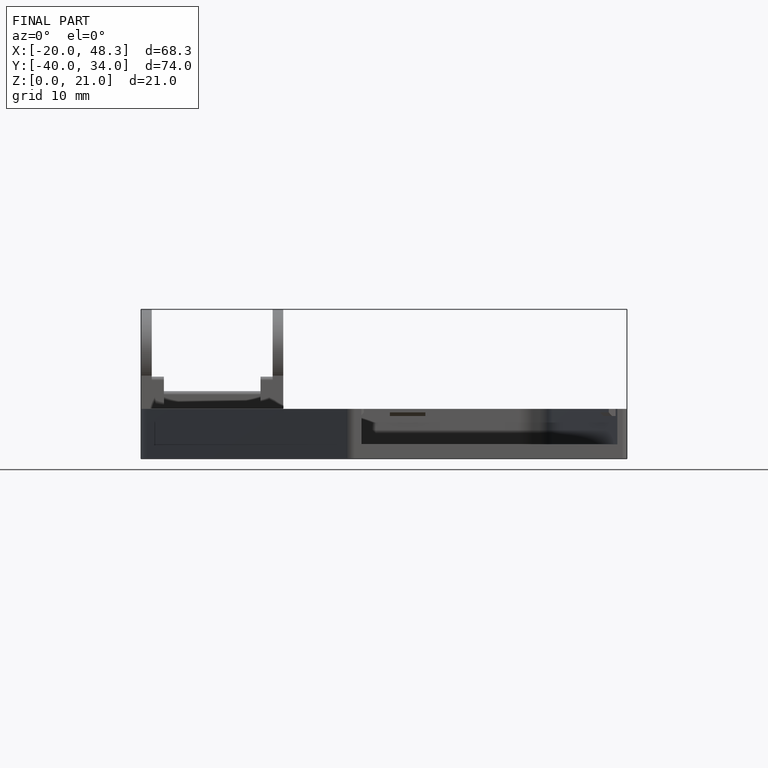
[diagram: finished part — front view with bounding-box wireframe]
